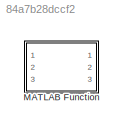
MODEL slx_84a7b28dccf2
KIND model
CONFIG AbsTol = auto
CONFIG FixedStep = auto
CONFIG MaxStep = auto
CONFIG MinStep = auto
CONFIG RelTol = 1e-3
CONFIG SampleTimeConstraint = Unconstrained
CONFIG Solver = VariableStepAuto
CONFIG SolverMode = Auto
CONFIG SolverName = VariableStepAuto
CONFIG StartTime = 0.0
CONFIG StopTime = 10.0
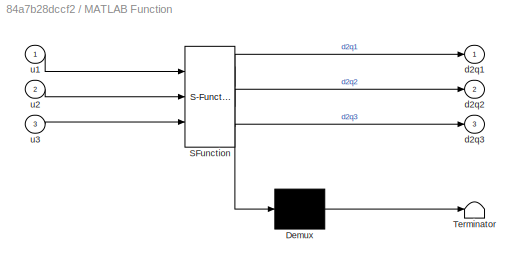
BLOCK [SubSystem] MATLAB Function
  ErrorFcn = Stateflow.Translate.translate
  PermitHierarchicalResolution = ExplicitOnly
  Ports = [3, 3]
  RequestExecContextInheritance = off
  SFBlockType = MATLAB Function
  TreatAsAtomicUnit = on
  Variant = off
BLOCK [Demux] MATLAB Function/ Demux 
  Outputs = 1
  Ports = [1, 1]
BLOCK [S-Function] MATLAB Function/ SFunction 
  EnableBusSupport = off
  FunctionName = sf_sfun
  PortCounts = [3 4]
  Ports = [3, 4]
  SFunctionDeploymentMode = off
  Tag = Stateflow S-Function ControleCartesiano 2
BLOCK [Terminator] MATLAB Function/ Terminator 
BLOCK [Outport] MATLAB Function/d2q1
  IconDisplay = Port number
BLOCK [Outport] MATLAB Function/d2q2
  IconDisplay = Port number
  Port = 2
BLOCK [Outport] MATLAB Function/d2q3
  IconDisplay = Port number
  Port = 3
BLOCK [Inport] MATLAB Function/u1
  IconDisplay = Port number
BLOCK [Inport] MATLAB Function/u2
  IconDisplay = Port number
  Port = 2
BLOCK [Inport] MATLAB Function/u3
  IconDisplay = Port number
  Port = 3
CHART MATLAB Function states=1 transitions=1
  STATE_LABEL 'eML_blk_kernel()'
  STATE_LABEL 'SCRIPT:\nfunction [d2q1, d2q2, d2q3]= Sys(u1, u2, u3)\n\n%%  Inicializações\nu = [u1; u2; u3];\nd2q = zeros(3,1);\n\n%Parâmetros do sistema\nDinv = [ 0.0250     0           0\n         0          0.0417      0\n         0          0           0.1250];\n\nG = [392.4000\n     0\n     0];\n \nd2q = Dinv*(u-G);\n\nd2q1 = d2q(1);\nd2q2 = d2q(2);\nd2q3 = d2q(3);'
